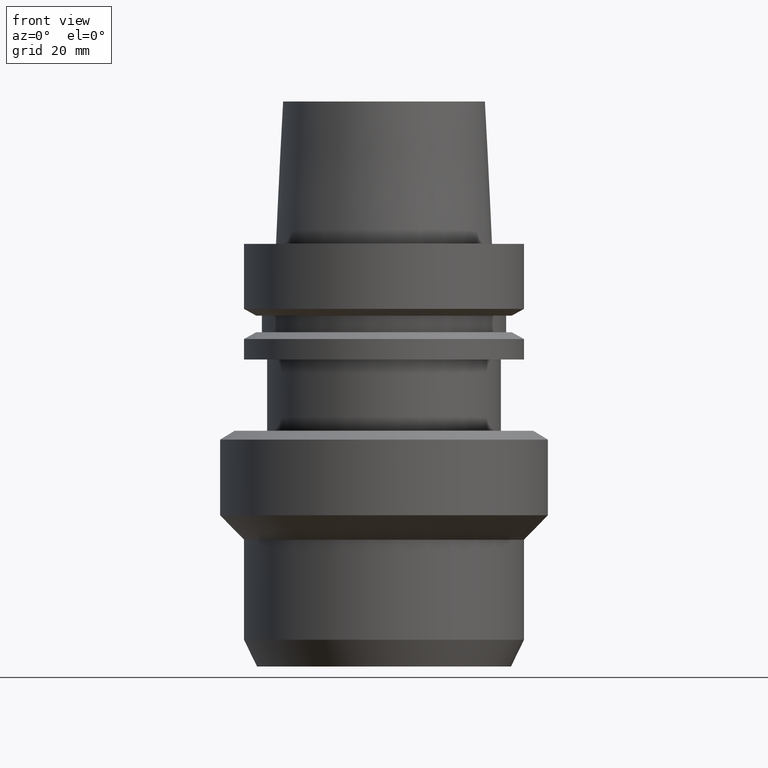
[diagram: clean part render]
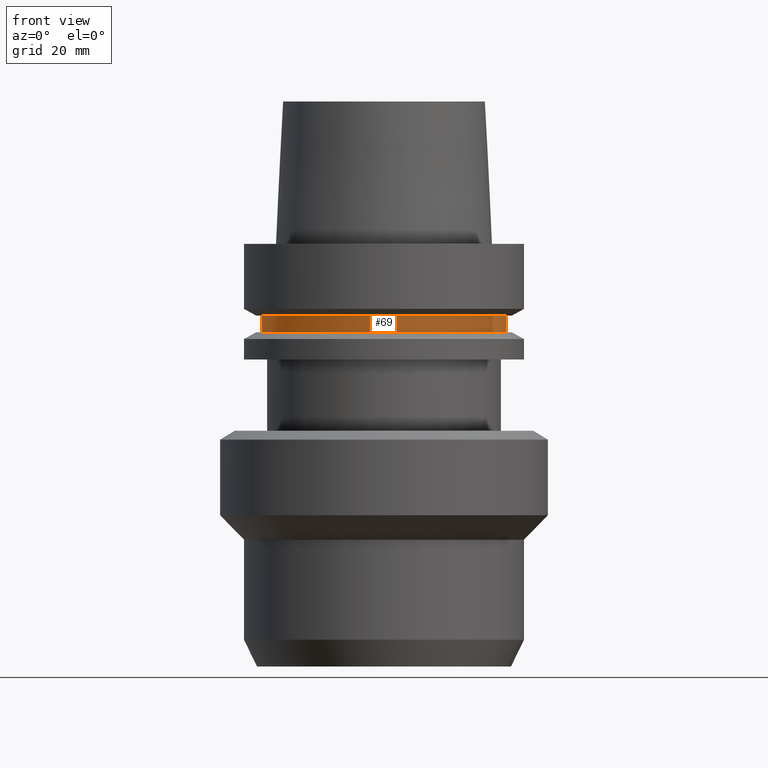
[diagram: same view with one face highlighted and labeled with its STEP entity id]
A machine part, front view. The second image highlights one B-rep face of the part: STEP entity #69.
In plain terms, the highlighted cylindrical surface (bore or boss wall) has radius 27.5 mm, axis along (0, 0, -1).
Its self-contained STEP definition (entity closure, byte-faithful):
#69=ADVANCED_FACE('Unnamed[1]',(#185,#186),#187,.T.);
#77=EDGE_CURVE('Unnamed[1]',#197,#197,#198,.T.);
#112=EDGE_CURVE('Unnamed[1]',#252,#252,#253,.T.);
#185=FACE_BOUND('',#344,.T.);
#186=FACE_BOUND('',#345,.T.);
#187=CYLINDRICAL_SURFACE('',#346,27.4999999999994);
#197=VERTEX_POINT('',#358);
#198=CIRCLE('',#359,27.5);
#252=VERTEX_POINT('',#427);
#253=CIRCLE('',#428,27.4999999999989);
#344=EDGE_LOOP('',(#530));
#345=EDGE_LOOP('',(#531));
#346=AXIS2_PLACEMENT_3D('',#532,#533,#534);
#358=CARTESIAN_POINT('',(9.87371481812537E-016,27.5,-16.1249999999997));
#359=AXIS2_PLACEMENT_3D('',#542,#543,#544);
#427=CARTESIAN_POINT('',(1.21699275665276E-015,27.4999999999989,-19.8750000000013));
#428=AXIS2_PLACEMENT_3D('',#604,#605,#606);
#530=ORIENTED_EDGE('',*,*,#112,.F.);
#531=ORIENTED_EDGE('',*,*,#77,.T.);
#532=CARTESIAN_POINT('',(1.10218211923265E-015,5.74301300144934E-015,-18.0000000000005));
#533=DIRECTION('',(6.12323399573677E-017,7.79108829899064E-017,-1.0));
#534=DIRECTION('',(-9.59781840438566E-033,1.0,7.79108829899063E-017));
#542=CARTESIAN_POINT('',(9.87371481812538E-016,5.59693009584321E-015,-16.1249999999997));
#543=DIRECTION('',(6.12323399573677E-017,7.79108829899064E-017,-1.0));
#544=DIRECTION('',(-9.59781840438566E-033,1.0,7.79108829899063E-017));
#604=CARTESIAN_POINT('',(1.21699275665276E-015,5.88909590705548E-015,-19.8750000000013));
#605=DIRECTION('',(6.12323399573676E-017,7.79108829899063E-017,-1.0));
#606=DIRECTION('',(-9.59781840438566E-033,1.0,7.79108829899063E-017));